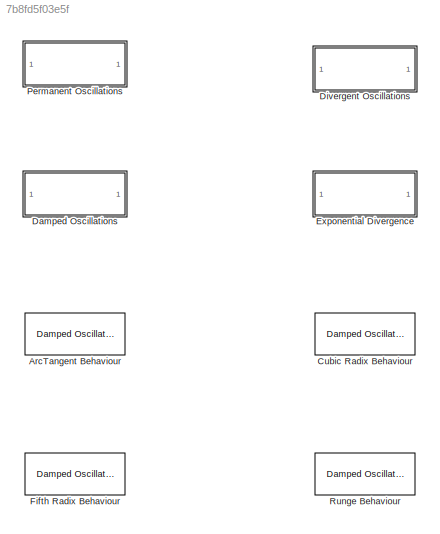
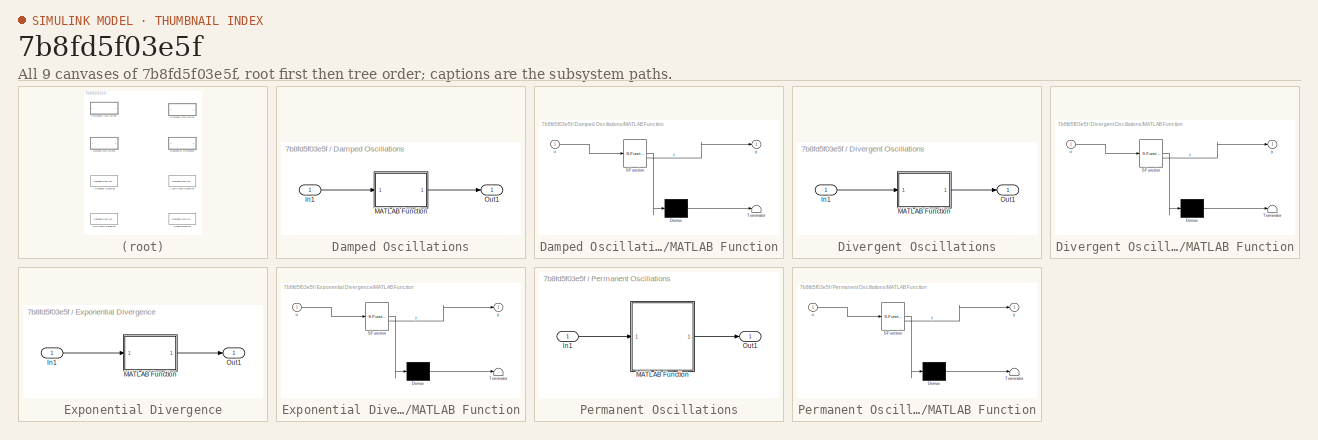
[diagram: thumbnail index - all 9 canvases of the model, root first then tree order]
MODEL slx_7b8fd5f03e5f
KIND library
CONFIG AbsTol = auto
CONFIG EnableMultiTasking = off
CONFIG FixedStep = auto
CONFIG MaxStep = auto
CONFIG MinStep = auto
CONFIG RelTol = 1e-3
CONFIG SampleTimeConstraint = Unconstrained
CONFIG SolverName = VariableStepAuto
CONFIG StartTime = 0.0
CONFIG StopTime = 10.0
BLOCK [Reference] ArcTangent Behaviour  REF=$bdroot/Damped Oscillations
  SourceBlock = $bdroot/Damped Oscillations
  SourceType = SubSystem
BLOCK [Reference] Cubic Radix Behaviour  REF=$bdroot/Damped Oscillations
  SourceBlock = $bdroot/Damped Oscillations
  SourceType = SubSystem
BLOCK [SubSystem] Damped Oscillations
BLOCK [Inport] Damped Oscillations/In1
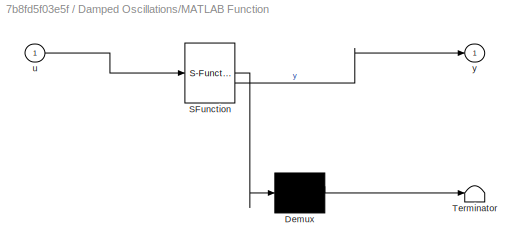
BLOCK [SubSystem] Damped Oscillations/MATLAB Function
  ErrorFcn = Stateflow.Translate.translate
  PermitHierarchicalResolution = ExplicitOnly
  SFBlockType = MATLAB Function
  TreatAsAtomicUnit = on
BLOCK [Demux] Damped Oscillations/MATLAB Function/ Demux 
  Outputs = 1
BLOCK [S-Function] Damped Oscillations/MATLAB Function/ SFunction 
  EnableBusSupport = off
  FunctionName = sf_sfun
  PortCounts = [1 2]
  SFcnIsStateOwnerBlock = off
  SFunctionDeploymentMode = off
  Tag = Stateflow S-Function 3
BLOCK [Terminator] Damped Oscillations/MATLAB Function/ Terminator 
BLOCK [Inport] Damped Oscillations/MATLAB Function/u
BLOCK [Outport] Damped Oscillations/MATLAB Function/y
BLOCK [Outport] Damped Oscillations/Out1
BLOCK [SubSystem] Divergent Oscillations
BLOCK [Inport] Divergent Oscillations/In1
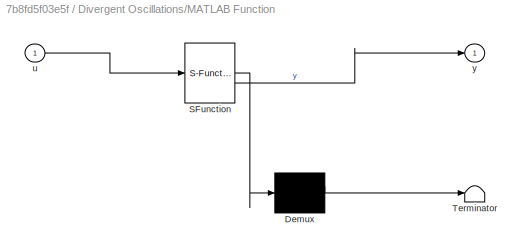
BLOCK [SubSystem] Divergent Oscillations/MATLAB Function
  ErrorFcn = Stateflow.Translate.translate
  PermitHierarchicalResolution = ExplicitOnly
  SFBlockType = MATLAB Function
  TreatAsAtomicUnit = on
BLOCK [Demux] Divergent Oscillations/MATLAB Function/ Demux 
  Outputs = 1
BLOCK [S-Function] Divergent Oscillations/MATLAB Function/ SFunction 
  EnableBusSupport = off
  FunctionName = sf_sfun
  PortCounts = [1 2]
  SFcnIsStateOwnerBlock = off
  SFunctionDeploymentMode = off
  Tag = Stateflow S-Function 1
BLOCK [Terminator] Divergent Oscillations/MATLAB Function/ Terminator 
BLOCK [Inport] Divergent Oscillations/MATLAB Function/u
BLOCK [Outport] Divergent Oscillations/MATLAB Function/y
BLOCK [Outport] Divergent Oscillations/Out1
BLOCK [SubSystem] Exponential Divergence
BLOCK [Inport] Exponential Divergence/In1
BLOCK [SubSystem] Exponential Divergence/MATLAB Function
  ErrorFcn = Stateflow.Translate.translate
  PermitHierarchicalResolution = ExplicitOnly
  SFBlockType = MATLAB Function
  TreatAsAtomicUnit = on
BLOCK [Demux] Exponential Divergence/MATLAB Function/ Demux 
  Outputs = 1
BLOCK [S-Function] Exponential Divergence/MATLAB Function/ SFunction 
  EnableBusSupport = off
  FunctionName = sf_sfun
  PortCounts = [1 2]
  SFcnIsStateOwnerBlock = off
  SFunctionDeploymentMode = off
  Tag = Stateflow S-Function 4
BLOCK [Terminator] Exponential Divergence/MATLAB Function/ Terminator 
BLOCK [Inport] Exponential Divergence/MATLAB Function/u
BLOCK [Outport] Exponential Divergence/MATLAB Function/y
BLOCK [Outport] Exponential Divergence/Out1
BLOCK [Reference] Fifth Radix Behaviour  REF=$bdroot/Damped Oscillations
  SourceBlock = $bdroot/Damped Oscillations
  SourceType = SubSystem
BLOCK [SubSystem] Permanent Oscillations
BLOCK [Inport] Permanent Oscillations/In1
BLOCK [SubSystem] Permanent Oscillations/MATLAB Function
  ErrorFcn = Stateflow.Translate.translate
  PermitHierarchicalResolution = ExplicitOnly
  SFBlockType = MATLAB Function
  StopFcn = if exist('u_logged', 'var')\n    propertyCheck = isPermOscillating(u_logged');\n\n    fprintf('Simulazione terminata. Proprietà verificata: %d\n', propertyCheck);\nend
  TreatAsAtomicUnit = on
BLOCK [Demux] Permanent Oscillations/MATLAB Function/ Demux 
  Outputs = 1
BLOCK [S-Function] Permanent Oscillations/MATLAB Function/ SFunction 
  EnableBusSupport = off
  FunctionName = sf_sfun
  PortCounts = [1 2]
  SFcnIsStateOwnerBlock = off
  SFunctionDeploymentMode = off
  Tag = Stateflow S-Function 2
BLOCK [Terminator] Permanent Oscillations/MATLAB Function/ Terminator 
BLOCK [Inport] Permanent Oscillations/MATLAB Function/u
BLOCK [Outport] Permanent Oscillations/MATLAB Function/y
BLOCK [Outport] Permanent Oscillations/Out1
BLOCK [Reference] Runge Behaviour  REF=$bdroot/Damped Oscillations
  SourceBlock = $bdroot/Damped Oscillations
  SourceType = SubSystem
LINE Damped Oscillations/In1:1 -> Damped Oscillations/MATLAB Function:1
LINE Damped Oscillations/MATLAB Function:1 -> Damped Oscillations/Out1:1
LINE Divergent Oscillations/In1:1 -> Divergent Oscillations/MATLAB Function:1
LINE Divergent Oscillations/MATLAB Function:1 -> Divergent Oscillations/Out1:1
LINE Exponential Divergence/In1:1 -> Exponential Divergence/MATLAB Function:1
LINE Exponential Divergence/MATLAB Function:1 -> Exponential Divergence/Out1:1
LINE Permanent Oscillations/In1:1 -> Permanent Oscillations/MATLAB Function:1
LINE Permanent Oscillations/MATLAB Function:1 -> Permanent Oscillations/Out1:1
CHART Permanent Oscillations/MATLAB Function states=1 transitions=1
  STATE_LABEL 'eML_blk_kernel()'
  STATE_LABEL "SCRIPT:\nfunction y = myBlockFunction(u)\n\n    persistent u_values;\n    if isempty(u_values)\n        u_values = [];\n    end\n\n    u_values = [u_values; u]; % save data\n    \n    assignin('base', 'u_logged', u_values); % Export in workspace\n\n    y = u;\nend\n\n"
CHART Damped Oscillations/MATLAB Function states=1 transitions=1
  STATE_LABEL 'eML_blk_kernel()'
  STATE_LABEL 'SCRIPT:\nfunction y = fcn(u)\n\ny = isRunge(u);\n\nend\n'
CHART Exponential Divergence/MATLAB Function states=1 transitions=1
  STATE_LABEL 'eML_blk_kernel()'
  STATE_LABEL 'SCRIPT:\nfunction y = fcn(u)\n\ny = isExpDivergent(u);\n'
CHART Divergent Oscillations/MATLAB Function states=1 transitions=1
  STATE_LABEL 'eML_blk_kernel()'
  STATE_LABEL 'SCRIPT:\nfunction y = fcn(u)\n\ny = isDivOscillating(u);\n\nend\n'
CHART  states=0 transitions=0
CHART  states=0 transitions=0
CHART  states=0 transitions=0
CHART  states=0 transitions=0
